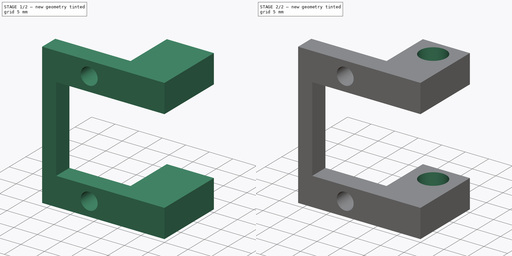
[diagram: build sequence overview — one tinted view per stage of 2, left to right]
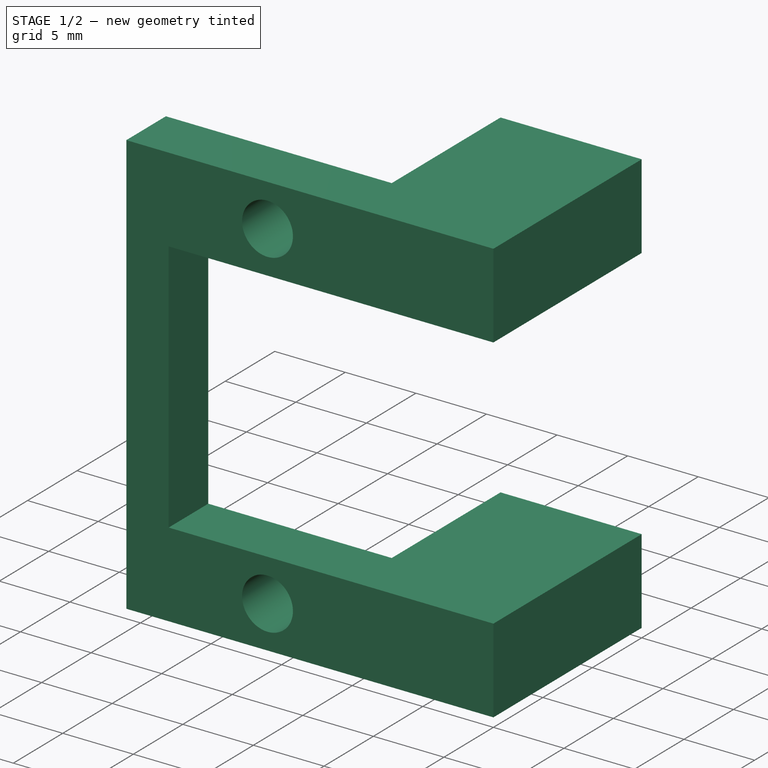
[diagram: stage 1 of 2 — iso view after this stage's code; geometry added in this stage tinted green]
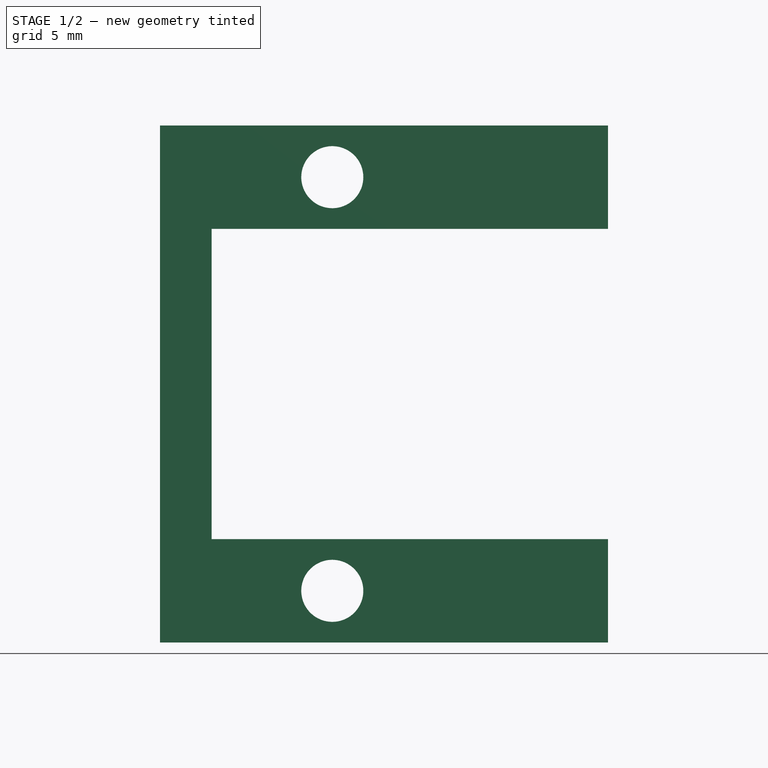
[diagram: stage 1 of 2 — front view after this stage's code; geometry added in this stage tinted green]
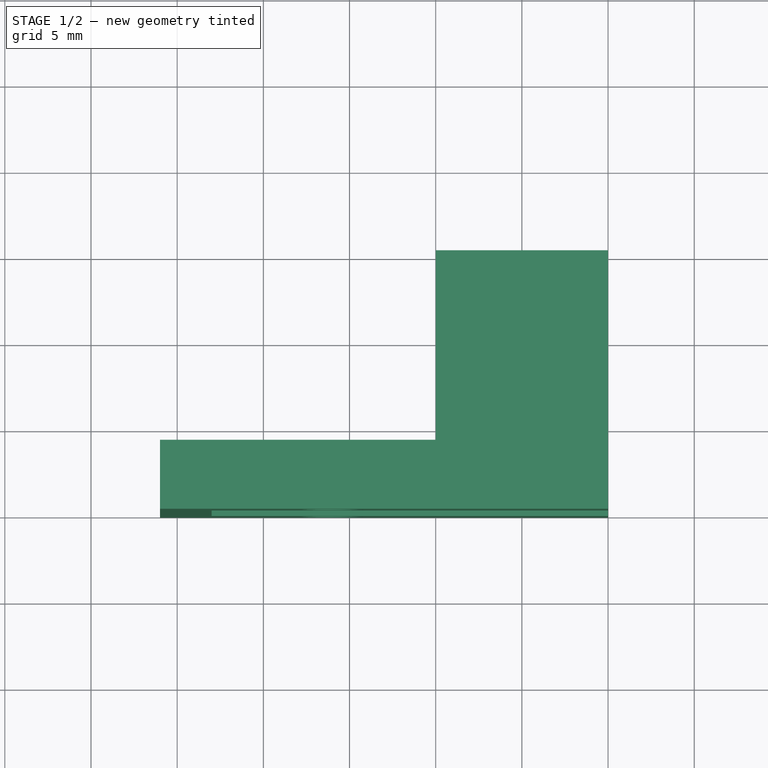
[diagram: stage 1 of 2 — top view after this stage's code; geometry added in this stage tinted green]
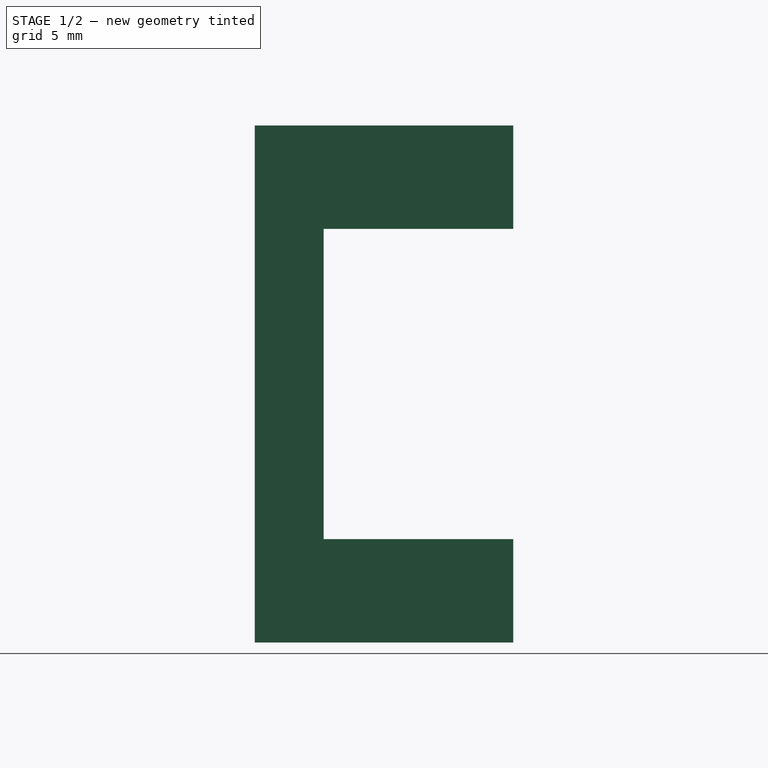
[diagram: stage 1 of 2 — right view after this stage's code; geometry added in this stage tinted green]
FCSTD DOCUMENT  (FreeCAD 0.16R6706 (Git))
Label: Suporte Polia Esticador
License: All rights reserved
LicenseURL: http://en.wikipedia.org/wiki/All_rights_reserved
objects: Sketcher::SketchObject×3, PartDesign::Pocket×2, PartDesign::Pad×1
note: 9 computed .brp shape members not serialized (recipe doc carries the construction recipe); baked Part::Feature solids carry a one-line shape summary decoded from their .brp

FEATURE [Sketcher::SketchObject] Sketch
  sketch-geometry (6):
    g0: LineSegment StartX=-10 StartY=4 StartZ=0 EndX=-26 EndY=4 EndZ=0
    g1: LineSegment StartX=-26 StartY=4 StartZ=0 EndX=-26 EndY=0 EndZ=0
    g2: LineSegment StartX=-26 StartY=0 StartZ=0 EndX=0 EndY=0 EndZ=0
    g3: LineSegment StartX=0 StartY=0 StartZ=0 EndX=0 EndY=15 EndZ=0
    g4: LineSegment StartX=0 StartY=15 StartZ=0 EndX=-10 EndY=15 EndZ=0
    g5: LineSegment StartX=-10 StartY=15 StartZ=0 EndX=-10 EndY=4 EndZ=0
  constraints (17):
    c: Coincident(g0,g1)
    c: Coincident(g1,g2)
    c: Coincident(g2,g3)
    c: Coincident(g3,g4)
    c: Coincident(g4,g5)
    c: Coincident(g0,g5)
    c: Horizontal(g0)
    c: Horizontal(g2)
    c: Horizontal(g4)
    c: Vertical(g1)
    c: Vertical(g5)
    c: Vertical(g3)
    c: DistanceY(g1,g1) = 4
    c: DistanceY(g3,g3) = 15
    c: DistanceX(g4,g4) = 10
    c: DistanceX(g0,g0) = 16
    c: Coincident(g-1,g2)
FEATURE [PartDesign::Pad] Pad
  Length = 30
  Length2 = 100
  Sketch = -> Sketch
  Type = 0
FEATURE [Sketcher::SketchObject] Sketch001
  ExternalGeometry = -> [Pad]
  Placement = pos=(0,0,0) rot=(1,0,0;1.5708rad)
  Support = -> Pad [Face3]
  sketch-geometry (7):
    g0: LineSegment StartX=-23 StartY=24 StartZ=0 EndX=6.16858 EndY=24 EndZ=0
    g1: LineSegment StartX=6.16858 StartY=24 StartZ=0 EndX=6.16858 EndY=6 EndZ=0
    g2: LineSegment StartX=6.16858 StartY=6 StartZ=0 EndX=-23 EndY=6 EndZ=0
    g3: LineSegment StartX=-23 StartY=6 StartZ=0 EndX=-23 EndY=24 EndZ=0
    g4: Circle CenterX=-16 CenterY=27 CenterZ=0 NormalX=0 NormalY=0 NormalZ=1 Radius=1.8
    g5: Circle CenterX=-16 CenterY=3 CenterZ=0 NormalX=0 NormalY=0 NormalZ=1 Radius=1.8
    g6: LineSegment [constr] StartX=-16 StartY=27 StartZ=0 EndX=-16 EndY=3 EndZ=0
  constraints (20):
    c: Coincident(g0,g1)
    c: Coincident(g1,g2)
    c: Coincident(g2,g3)
    c: Coincident(g3,g0)
    c: Horizontal(g0)
    c: Horizontal(g2)
    c: Vertical(g1)
    c: Vertical(g3)
    c: DistanceX(g-3,g2) = 3
    c: DistanceY(g0,g-3) = 6
    c: DistanceY(g-3,g2) = 6
    c: Radius(g4) = 1.8
    c: Equal(g4,g5) = 1.8
    c: Vertical(g6)
    c: Coincident(g6,g4)
    c: Coincident(g5,g6)
    c: DistanceX(g0,g4) = 7
    c: DistanceY(g0,g4) = 3
    c: DistanceY(g5,g2) = 3
    c: DistanceY(g1,g1) = 18
FEATURE [PartDesign::Pocket] Pocket
  Length = 5
  Sketch = -> Sketch001
  Type = 1
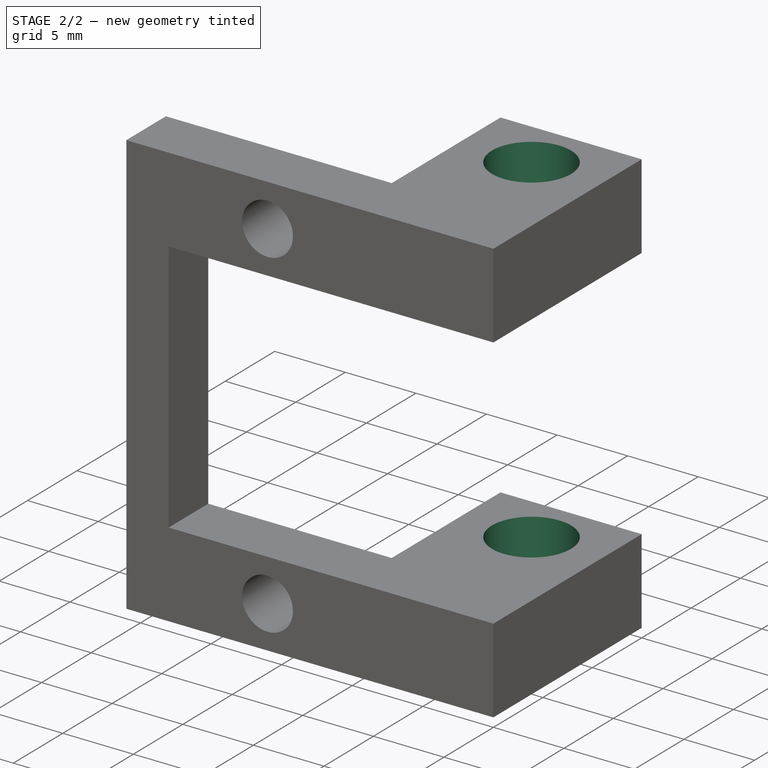
[diagram: stage 2 of 2 — iso view after this stage's code; geometry added in this stage tinted green]
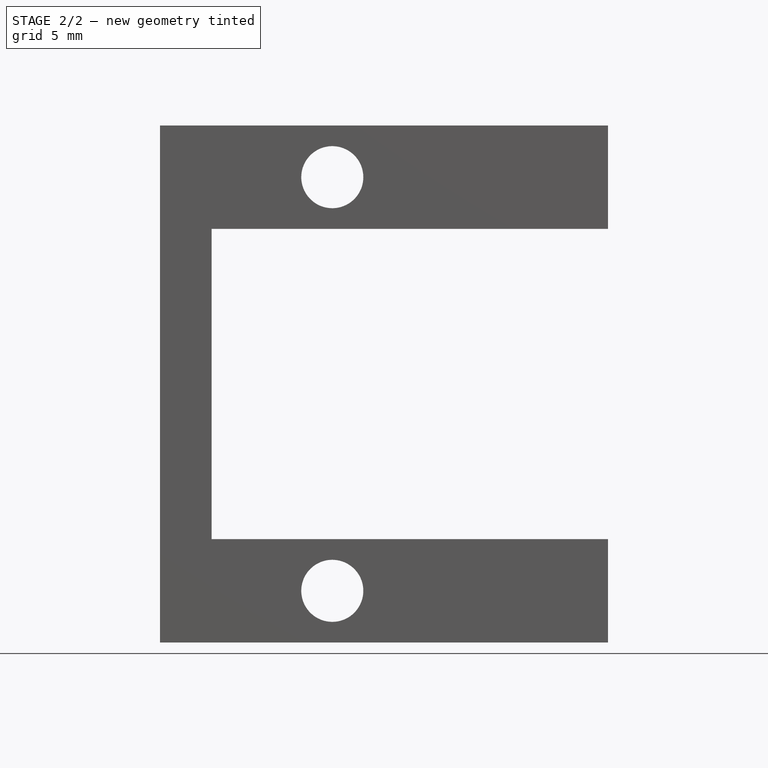
[diagram: stage 2 of 2 — front view after this stage's code; geometry added in this stage tinted green]
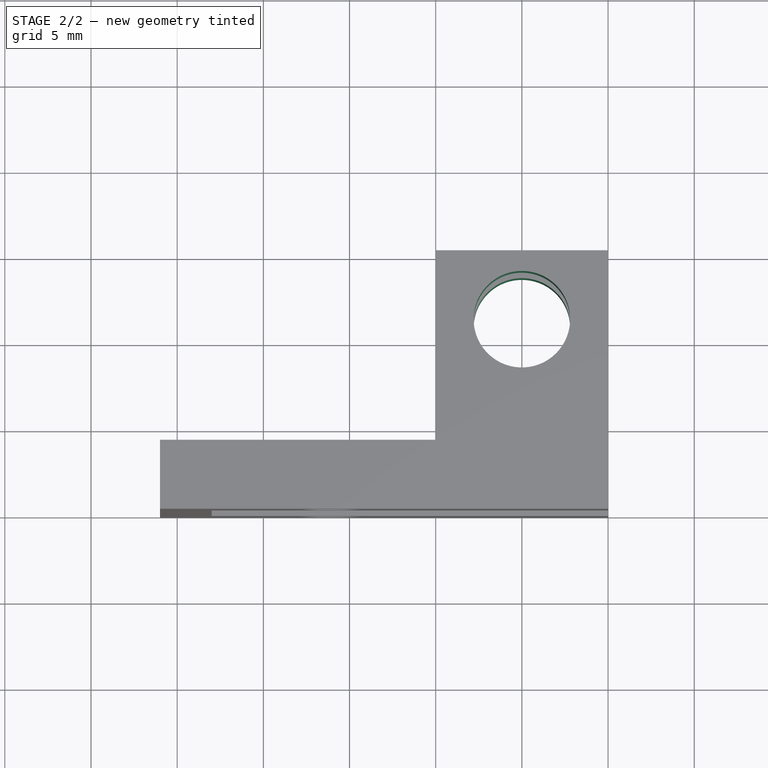
[diagram: stage 2 of 2 — top view after this stage's code; geometry added in this stage tinted green]
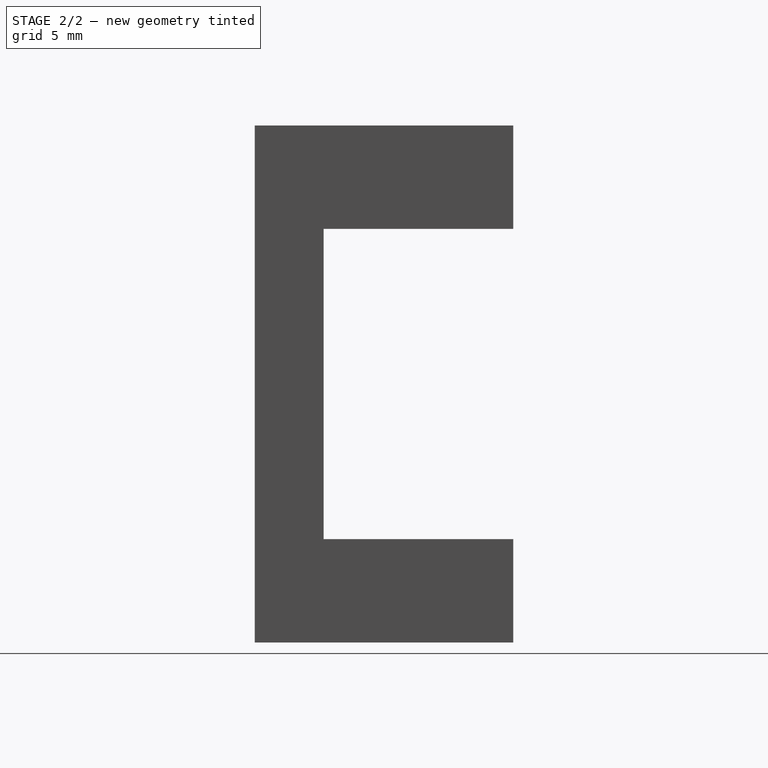
[diagram: stage 2 of 2 — right view after this stage's code; geometry added in this stage tinted green]
FEATURE [Sketcher::SketchObject] Sketch002
  ExternalGeometry = -> [Pocket]
  Placement = pos=(0,0,30) rot=(0,0,1;0rad)
  Support = -> Pocket [Face4]
  sketch-geometry (2):
    g0: Circle CenterX=-5 CenterY=11 CenterZ=0 NormalX=0 NormalY=0 NormalZ=1 Radius=2.8
    g1: LineSegment [constr] StartX=-5 StartY=15 StartZ=0 EndX=-5 EndY=11 EndZ=0
  constraints (5):
    c: Radius(g0) = 2.8
    c: Vertical(g1)
    c: DistanceY(g1,g1) = 4
    c: Symmetric(g-3,g-3,g1)
    c: Coincident(g0,g1)
FEATURE [PartDesign::Pocket] Pocket001
  Length = 5
  Sketch = -> Sketch002
  Type = 1
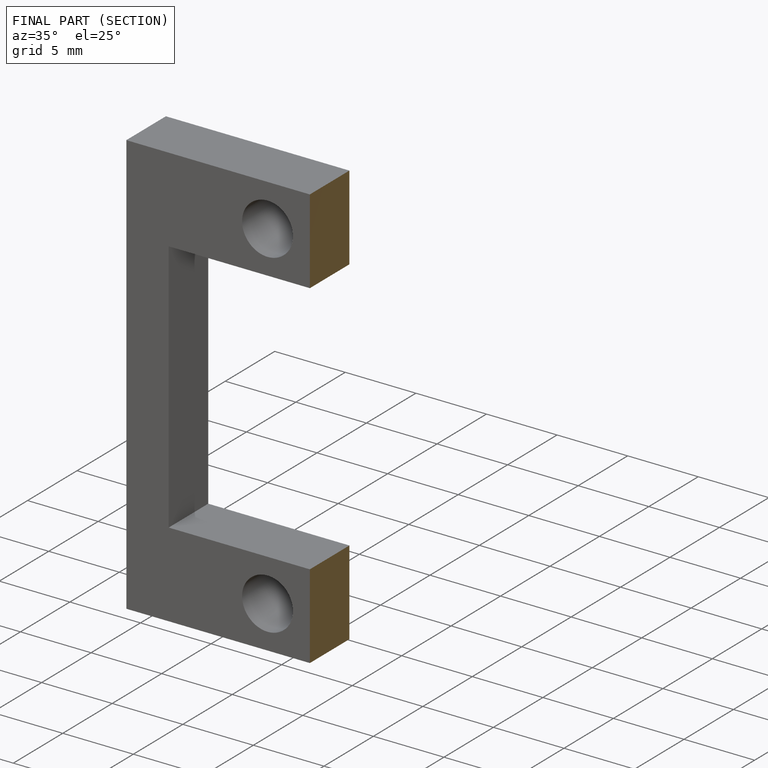
[diagram: finished part — half-section view (interior)]
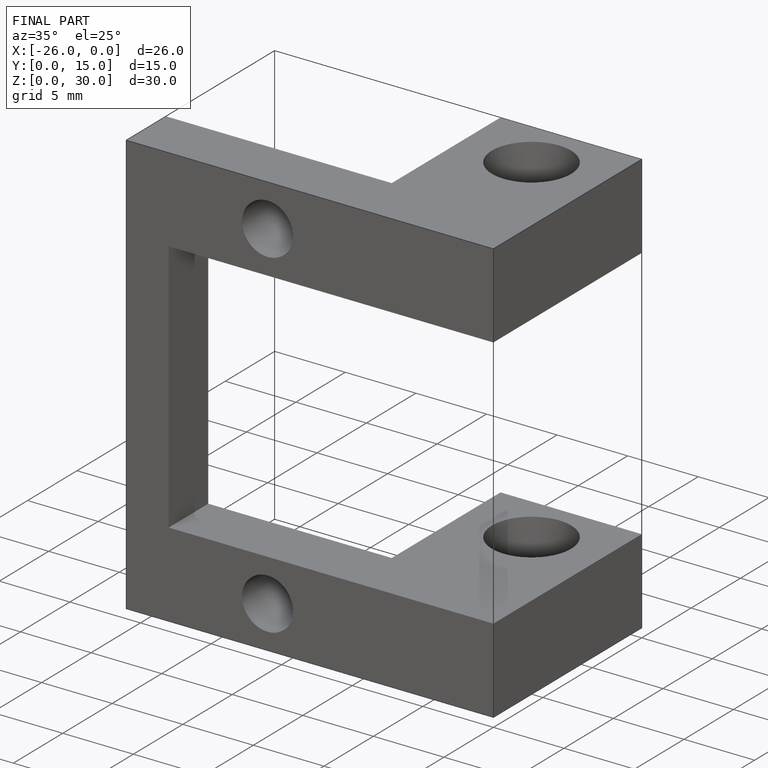
[diagram: finished part — iso view with bounding-box wireframe]
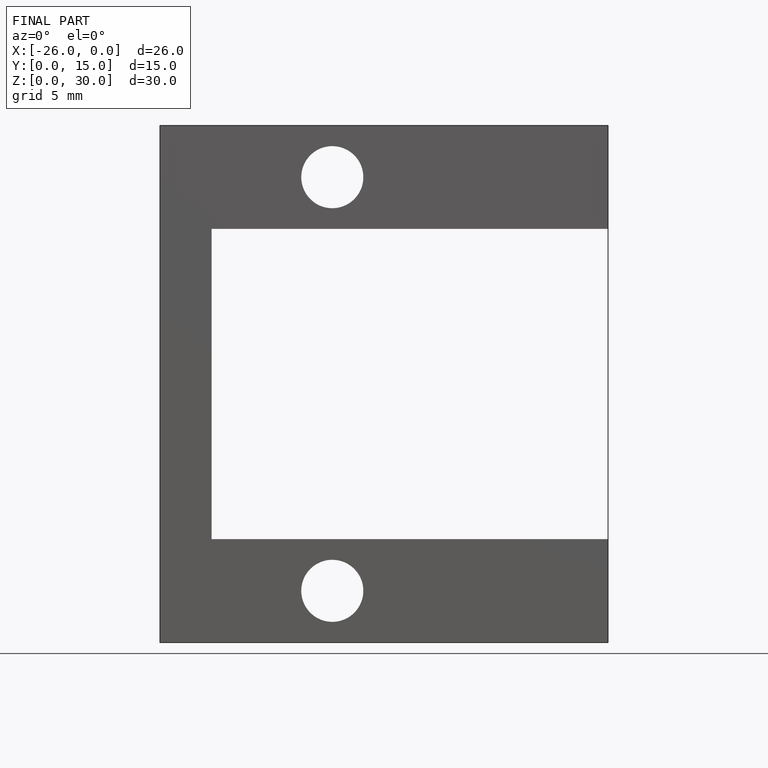
[diagram: finished part — front view with bounding-box wireframe]
